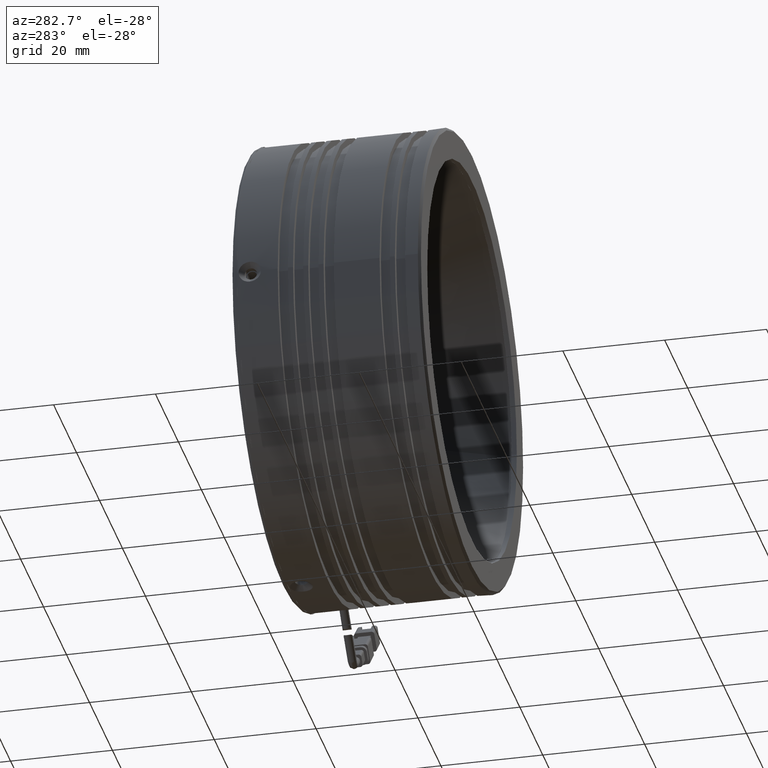
[diagram: clean part render]
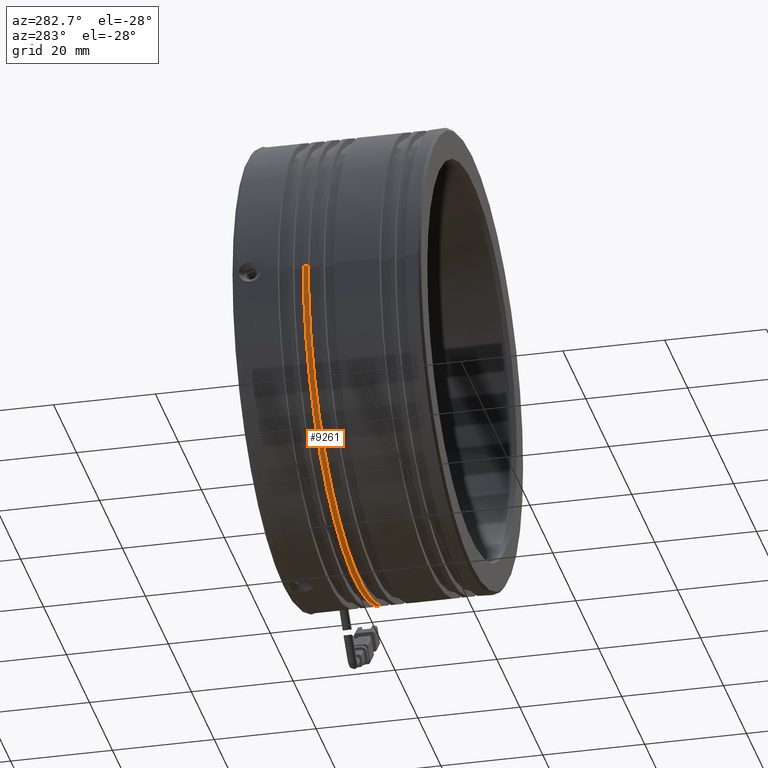
[diagram: same view with one face highlighted and labeled with its STEP entity id]
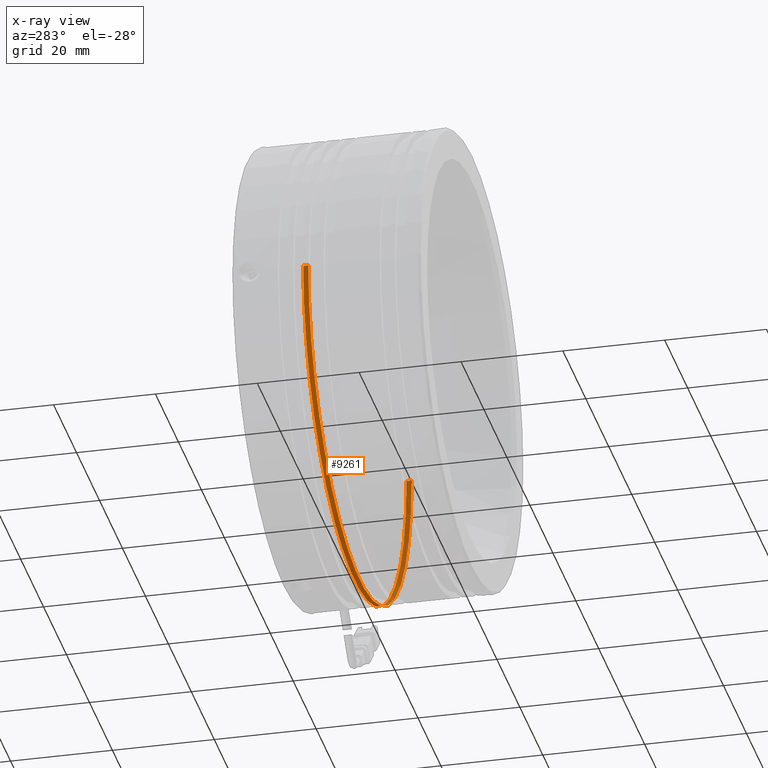
[diagram: x-ray of the same camera — body ghosted, the highlighted face saturated]
A machine part, auxiliary view. The second image highlights one B-rep face of the part: STEP entity #9261.
The next image is the same camera in x-ray: the body ghosted, the highlighted face saturated — about 25% of this face is hidden behind the body in this view.
In plain terms, the highlighted cylindrical surface (partial cylindrical patch) has radius 45 mm, axis along (-0, -1, 0).
Its self-contained STEP definition (entity closure, byte-faithful):
#208 = CARTESIAN_POINT ( 'NONE',  ( 31.64446447695870600, 0.3660633797933632300, 4.718366345757608500E-013 ) ) ;
#777 = DIRECTION ( 'NONE',  ( -1.000000000000000000, 0.0000000000000000000, -1.032507412901395300E-014 ) ) ;
#853 = DIRECTION ( 'NONE',  ( 0.0000000000000000000, 1.000000000000000000, -0.0000000000000000000 ) ) ;
#905 = CARTESIAN_POINT ( 'NONE',  ( -13.35553552304124700, -0.6339366202066376600, 1.271920936629652900E-014 ) ) ;
#914 = DIRECTION ( 'NONE',  ( -1.000000000000000000, 0.0000000000000000000, -1.032507412901395300E-014 ) ) ;
#958 = EDGE_CURVE ( 'NONE', #9063, #2500, #9912, .T. ) ;
#1277 = DIRECTION ( 'NONE',  ( -0.0000000000000000000, -1.000000000000000000, 0.0000000000000000000 ) ) ;
#1431 = AXIS2_PLACEMENT_3D ( 'NONE', #4036, #7671, #3121 ) ;
#1627 = EDGE_LOOP ( 'NONE', ( #1957, #2360, #1771, #10353 ) ) ;
#1771 = ORIENTED_EDGE ( 'NONE', *, *, #2470, .T. ) ;
#1842 = DIRECTION ( 'NONE',  ( -0.0000000000000000000, -1.000000000000000000, 0.0000000000000000000 ) ) ;
#1957 = ORIENTED_EDGE ( 'NONE', *, *, #958, .T. ) ;
#2196 = CARTESIAN_POINT ( 'NONE',  ( 31.64446447695870600, -50.09547878573967900, 4.718366345757608500E-013 ) ) ;
#2223 = CARTESIAN_POINT ( 'NONE',  ( -13.35553552304124700, 0.3660633797933632300, 1.271920936629652900E-014 ) ) ;
#2360 = ORIENTED_EDGE ( 'NONE', *, *, #7857, .T. ) ;
#2470 = EDGE_CURVE ( 'NONE', #7913, #4398, #6854, .T. ) ;
#2500 = VERTEX_POINT ( 'NONE', #208 ) ;
#2900 = VECTOR ( 'NONE', #8108, 1000.000000000000000 ) ;
#2931 = CYLINDRICAL_SURFACE ( 'NONE', #1431, 44.99999999999994300 ) ;
#3121 = DIRECTION ( 'NONE',  ( -1.000000000000000000, 0.0000000000000000000, -1.032507412901395300E-014 ) ) ;
#3929 = EDGE_CURVE ( 'NONE', #9063, #4398, #10282, .T. ) ;
#4036 = CARTESIAN_POINT ( 'NONE',  ( -13.35553552304124700, -50.09547878573967900, 1.271920936629652900E-014 ) ) ;
#4057 = LINE ( 'NONE', #2196, #8661 ) ;
#4398 = VERTEX_POINT ( 'NONE', #11757 ) ;
#5291 = AXIS2_PLACEMENT_3D ( 'NONE', #905, #853, #777 ) ;
#6854 = CIRCLE ( 'NONE', #5291, 44.99999999999994300 ) ;
#7141 = CARTESIAN_POINT ( 'NONE',  ( -58.35553552304119100, -50.09547878573967900, -4.519091264393308100E-013 ) ) ;
#7671 = DIRECTION ( 'NONE',  ( -0.0000000000000000000, -1.000000000000000000, 0.0000000000000000000 ) ) ;
#7857 = EDGE_CURVE ( 'NONE', #2500, #7913, #4057, .T. ) ;
#7913 = VERTEX_POINT ( 'NONE', #10630 ) ;
#8108 = DIRECTION ( 'NONE',  ( -0.0000000000000000000, -1.000000000000000000, 0.0000000000000000000 ) ) ;
#8263 = CARTESIAN_POINT ( 'NONE',  ( -58.35553552304119100, 0.3660633797933632300, -4.519091264393308100E-013 ) ) ;
#8661 = VECTOR ( 'NONE', #1277, 1000.000000000000000 ) ;
#9063 = VERTEX_POINT ( 'NONE', #8263 ) ;
#9261 = ADVANCED_FACE ( 'NONE', ( #11220 ), #2931, .T. ) ;
#9912 = CIRCLE ( 'NONE', #10748, 44.99999999999994300 ) ;
#10282 = LINE ( 'NONE', #7141, #2900 ) ;
#10353 = ORIENTED_EDGE ( 'NONE', *, *, #3929, .F. ) ;
#10630 = CARTESIAN_POINT ( 'NONE',  ( 31.64446447695870600, -0.6339366202066376600, 4.718366345757608500E-013 ) ) ;
#10748 = AXIS2_PLACEMENT_3D ( 'NONE', #2223, #1842, #914 ) ;
#11220 = FACE_OUTER_BOUND ( 'NONE', #1627, .T. ) ;
#11757 = CARTESIAN_POINT ( 'NONE',  ( -58.35553552304119100, -0.6339366202066376600, -4.519091264393308100E-013 ) ) ;